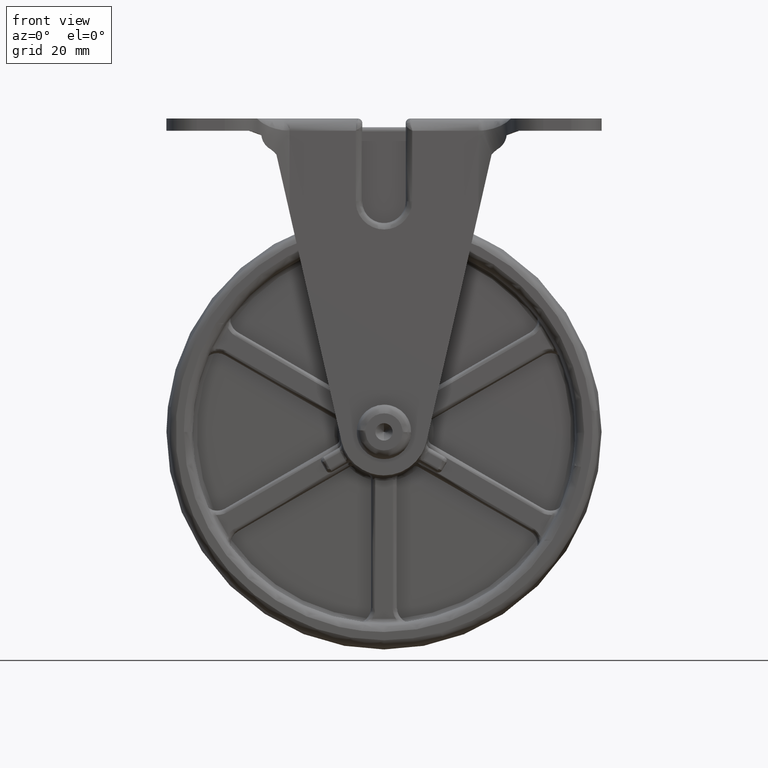
[diagram: clean part render]
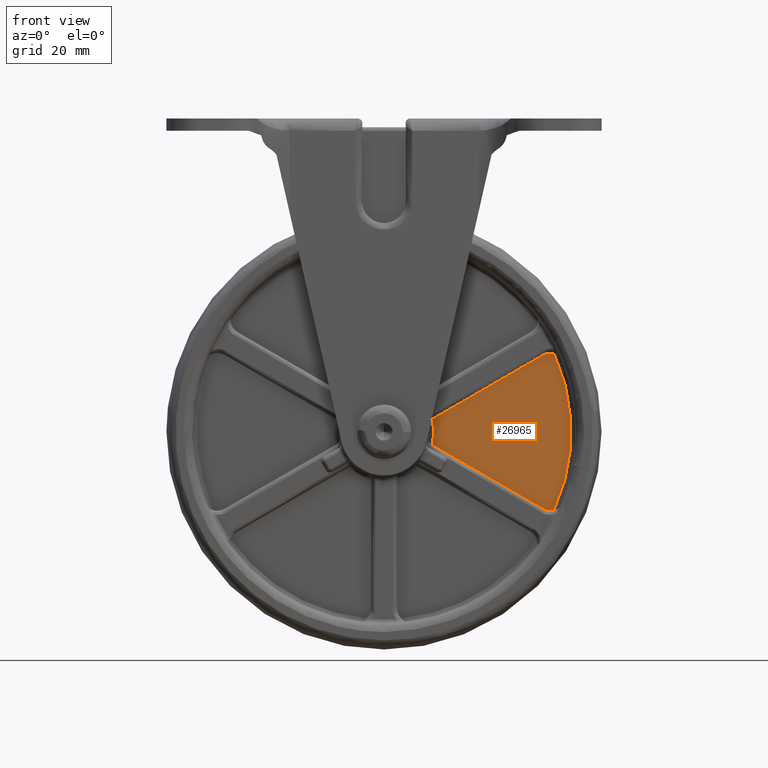
[diagram: same view with one face highlighted and labeled with its STEP entity id]
A machine part, front view. The second image highlights one B-rep face of the part: STEP entity #26965.
In plain terms, the highlighted face is a freeform B-spline surface patch.
Its self-contained STEP definition (entity closure, byte-faithful):
#25478=CARTESIAN_POINT('',(11.037789283345219,-7.500000000000000,-2.908568998859745));
#25479=VERTEX_POINT('',#25478);
#25491=CARTESIAN_POINT('',(36.557987677560803,-7.500000000000000,-17.642662411532751));
#25492=VERTEX_POINT('',#25491);
#25498=CARTESIAN_POINT('',(11.037789283345219,-7.500000000000000,-2.908568998859745));
#25499=CARTESIAN_POINT('',(36.557987677560803,-7.500000000000000,-17.642662411532751));
#25500=QUASI_UNIFORM_CURVE('',1,(#25498,#25499),.UNSPECIFIED.,.F.,.U.);
#25501=EDGE_CURVE('',#25479,#25492,#25500,.T.);
#25574=CARTESIAN_POINT('',(39.034998561031401,-7.500000000000000,-18.035234576039350));
#25575=VERTEX_POINT('',#25574);
#25593=CARTESIAN_POINT('',(36.557987677560789,-7.500000000000000,-17.642662411532768));
#25594=CARTESIAN_POINT('',(37.721168317763372,-7.500000000000000,-18.314225067269902));
#25595=CARTESIAN_POINT('',(39.034998561031422,-7.500000000000000,-18.035234576039429));
#25603=(BOUNDED_CURVE()B_SPLINE_CURVE(2,(#25593,#25594,#25595),.UNSPECIFIED.,.F.,.U.)CURVE()GEOMETRIC_REPRESENTATION_ITEM()QUASI_UNIFORM_CURVE()RATIONAL_B_SPLINE_CURVE((1.0,0.933616013568907,1.0))REPRESENTATION_ITEM(''));
#25604=EDGE_CURVE('',#25492,#25575,#25603,.T.);
#25631=CARTESIAN_POINT('',(11.037796602198400,-7.499999999999489,2.908573224401815));
#25632=VERTEX_POINT('',#25631);
#25640=CARTESIAN_POINT('',(36.557987677560753,-7.500000000000000,17.642662411532950));
#25641=VERTEX_POINT('',#25640);
#25642=CARTESIAN_POINT('',(36.557987677560753,-7.500000000000000,17.642662411532950));
#25643=CARTESIAN_POINT('',(11.037796602198400,-7.499999999999489,2.908573224401815));
#25644=QUASI_UNIFORM_CURVE('',1,(#25642,#25643),.UNSPECIFIED.,.F.,.U.);
#25645=EDGE_CURVE('',#25641,#25632,#25644,.T.);
#25702=CARTESIAN_POINT('',(39.035014954276299,-7.500000000000000,18.035231094909999));
#25703=VERTEX_POINT('',#25702);
#25724=CARTESIAN_POINT('',(39.035014954276299,-7.500000000000000,18.035231094909989));
#25725=CARTESIAN_POINT('',(37.721176643197246,-7.500000000000000,18.314229873961565));
#25726=CARTESIAN_POINT('',(36.557987677560760,-7.500000000000000,17.642662411532939));
#25734=(BOUNDED_CURVE()B_SPLINE_CURVE(2,(#25724,#25725,#25726),.UNSPECIFIED.,.F.,.U.)CURVE()GEOMETRIC_REPRESENTATION_ITEM()QUASI_UNIFORM_CURVE()RATIONAL_B_SPLINE_CURVE((1.0,0.933615155815360,1.0))REPRESENTATION_ITEM(''));
#25735=EDGE_CURVE('',#25703,#25641,#25734,.T.);
#26924=CARTESIAN_POINT('',(11.037789283345210,-7.500000000000000,-2.908568998859742));
#26925=CARTESIAN_POINT('',(11.804231120700551,-7.500000000000000,0.000001148474773));
#26926=CARTESIAN_POINT('',(11.037796602198400,-7.499999999999489,2.908573224401815));
#26934=(BOUNDED_CURVE()B_SPLINE_CURVE(2,(#26924,#26925,#26926),.UNSPECIFIED.,.F.,.U.)CURVE()GEOMETRIC_REPRESENTATION_ITEM()QUASI_UNIFORM_CURVE()RATIONAL_B_SPLINE_CURVE((1.0,0.966990637824608,1.0))REPRESENTATION_ITEM(''));
#26935=EDGE_CURVE('',#25479,#25632,#26934,.T.);
#26940=CARTESIAN_POINT('',(9.441276234989042,-7.500000000000000,-19.920702355350532));
#26941=CARTESIAN_POINT('',(9.441276234989042,-7.500000000000000,19.920701508168470));
#26942=CARTESIAN_POINT('',(44.596527619529162,-7.500000000000000,-19.920702355350532));
#26943=CARTESIAN_POINT('',(44.596527619529162,-7.500000000000000,19.920701508168470));
#26944=B_SPLINE_SURFACE_WITH_KNOTS('',1,1,((#26940,#26942),(#26941,#26943)),.UNSPECIFIED.,.F.,.F.,.U.,(2,2),(2,2),(0.0,39.841403863519012),(0.0,35.155251384540122),.UNSPECIFIED.);
#26945=ORIENTED_EDGE('',*,*,#26935,.F.);
#26946=ORIENTED_EDGE('',*,*,#25501,.T.);
#26947=ORIENTED_EDGE('',*,*,#25604,.T.);
#26948=CARTESIAN_POINT('',(39.034998561031387,-7.500000000000000,-18.035234576039350));
#26949=CARTESIAN_POINT('',(47.367773944020634,-7.499999999999999,-0.000005527626763));
#26950=CARTESIAN_POINT('',(39.035014954276313,-7.500000000000000,18.035231094909999));
#26958=(BOUNDED_CURVE()B_SPLINE_CURVE(2,(#26948,#26949,#26950),.UNSPECIFIED.,.F.,.U.)CURVE()GEOMETRIC_REPRESENTATION_ITEM()QUASI_UNIFORM_CURVE()RATIONAL_B_SPLINE_CURVE((1.0,0.907790517046737,1.0))REPRESENTATION_ITEM(''));
#26959=EDGE_CURVE('',#25575,#25703,#26958,.T.);
#26960=ORIENTED_EDGE('',*,*,#26959,.T.);
#26961=ORIENTED_EDGE('',*,*,#25735,.T.);
#26962=ORIENTED_EDGE('',*,*,#25645,.T.);
#26963=EDGE_LOOP('',(#26945,#26946,#26947,#26960,#26961,#26962));
#26964=FACE_OUTER_BOUND('',#26963,.T.);
#26965=ADVANCED_FACE('',(#26964),#26944,.F.);